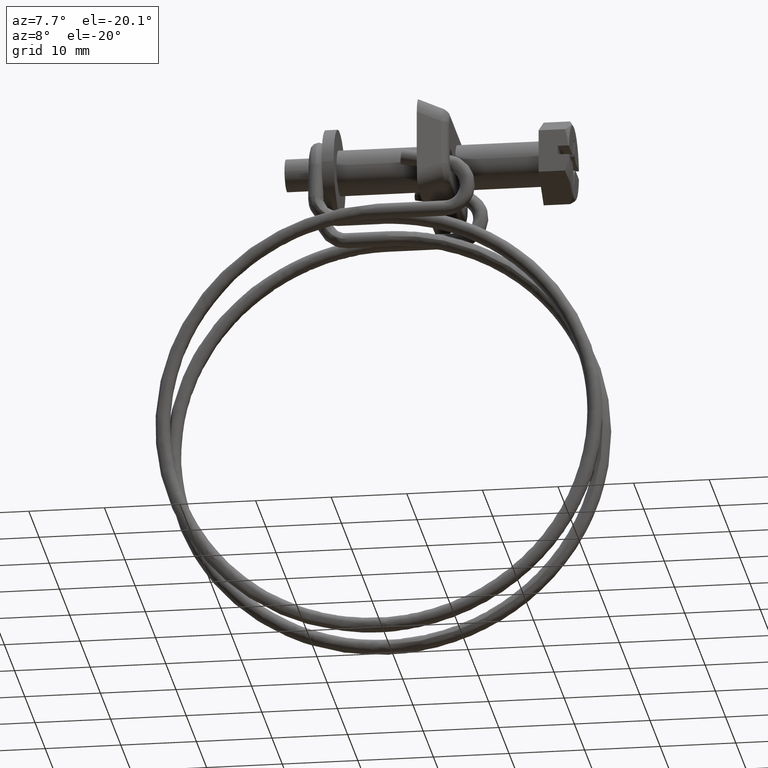
[diagram: clean part render]
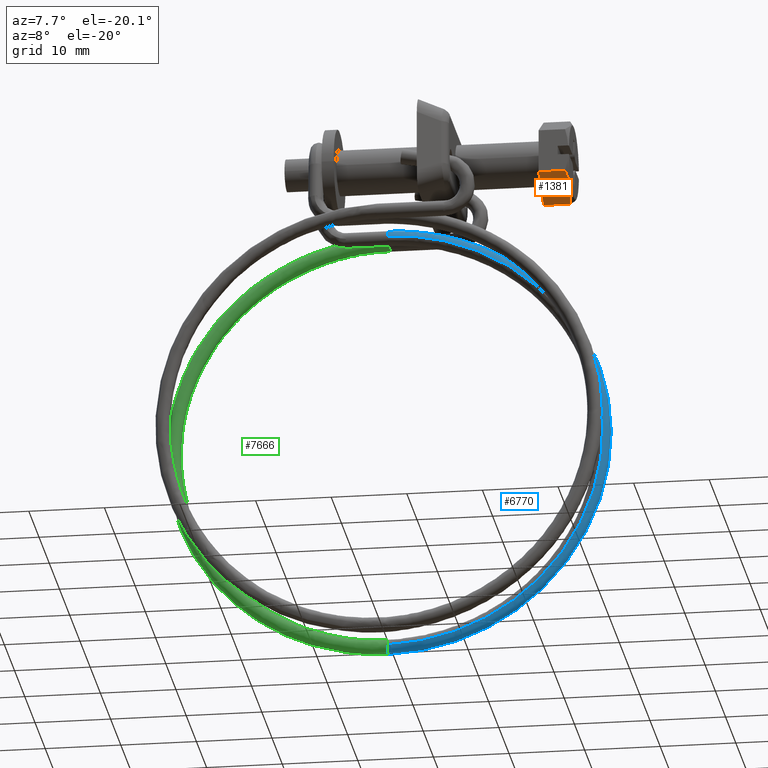
[diagram: same view with three faces highlighted in distinct colors, each labeled with its STEP entity id]
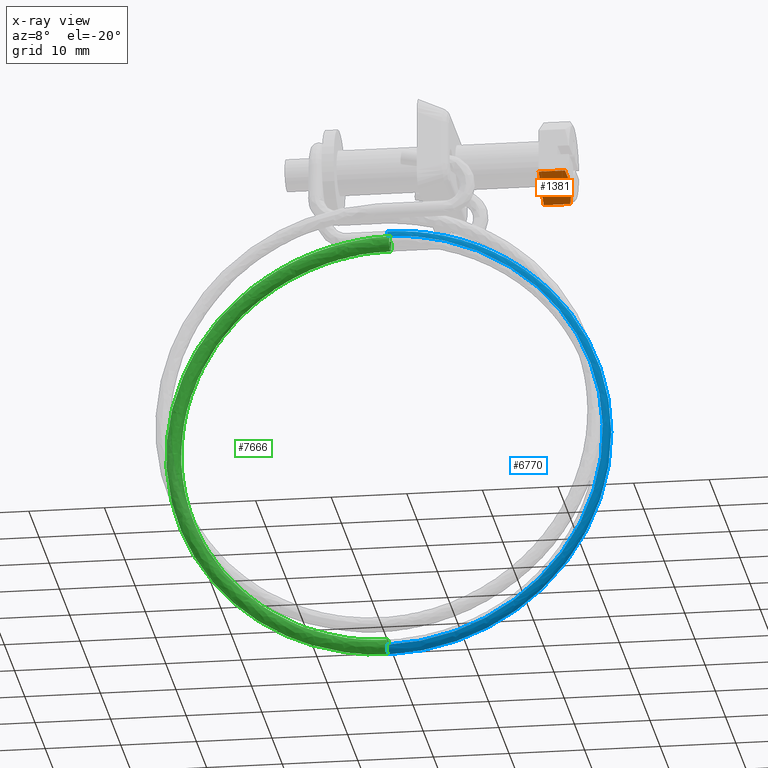
[diagram: x-ray of the same camera — body ghosted, the three highlighted faces saturated]
A machine part, auxiliary view with three faces highlighted in distinct colors.
The next image is the same camera in x-ray (body ghosted, the three faces saturated) — at least one of them is partly hidden behind the body in this view.
Their STEP definitions:

[orange] entity #1381 — the highlighted face is a freeform B-spline surface patch.
#1242=CARTESIAN_POINT('',(3.495681525698620,-5.000000000000110,-2.886751999999890));
#1243=VERTEX_POINT('',#1242);
#1257=CARTESIAN_POINT('',(3.495679343887270,-0.000002153850812,-5.773506797929970));
#1258=VERTEX_POINT('',#1257);
#1259=CARTESIAN_POINT('',(3.495681525698620,-5.000000000000110,-2.886751999999890));
#1260=CARTESIAN_POINT('',(3.631748774838477,-4.591797851232674,-3.122428003818029));
#1261=CARTESIAN_POINT('',(3.743892871781841,-4.180619389377304,-3.359822385593739));
#1262=CARTESIAN_POINT('',(3.860409793536096,-3.557419723301019,-3.719627465809851));
#1263=CARTESIAN_POINT('',(3.890611565091616,-3.348611934754268,-3.840182894828029));
#1264=CARTESIAN_POINT('',(3.931467253749869,-2.928564381532748,-4.082697857220439));
#1265=CARTESIAN_POINT('',(3.942104279098539,-2.717322515331042,-4.204658603913781));
#1266=CARTESIAN_POINT('',(3.942338532055669,-2.398503808791996,-4.388728969360087));
#1267=CARTESIAN_POINT('',(3.939788512961184,-2.291692360367098,-4.450396688167587));
#1268=CARTESIAN_POINT('',(3.929514293409375,-2.079039089782045,-4.573172310887046));
#1269=CARTESIAN_POINT('',(3.921801961243542,-1.973081874141998,-4.634346837364046));
#1270=CARTESIAN_POINT('',(3.891273651466277,-1.656270522594356,-4.817258253980599));
#1271=CARTESIAN_POINT('',(3.861049080379645,-1.446479160930136,-4.938381550126593));
#1272=CARTESIAN_POINT('',(3.744338280449758,-0.820840136469276,-5.299594996853493));
#1273=CARTESIAN_POINT('',(3.631916419630156,-0.408712980371029,-5.537537108396630));
#1274=CARTESIAN_POINT('',(3.495679343887270,-0.000002153850812,-5.773506797929970));
#1275=B_SPLINE_CURVE_WITH_KNOTS('',3,(#1259,#1260,#1261,#1262,#1263,#1264,#1265,#1266,#1267,#1268,#1269,#1270,#1271,#1272,#1273,#1274),.UNSPECIFIED.,.F.,.U.,(4,2,2,2,2,2,2,4),(0.0,0.250000000000000,0.375000000000000,0.500000000000000,0.562500000000000,0.625000000000000,0.750000000000000,1.0),.UNSPECIFIED.);
#1276=EDGE_CURVE('',#1243,#1258,#1275,.T.);
#1342=CARTESIAN_POINT('',(0.0,-5.000000000000110,-2.886751999999890));
#1343=VERTEX_POINT('',#1342);
#1349=CARTESIAN_POINT('',(3.495681525698620,-5.000000000000110,-2.886751999999890));
#1350=CARTESIAN_POINT('',(0.0,-5.000000000000110,-2.886751999999890));
#1351=QUASI_UNIFORM_CURVE('',1,(#1349,#1350),.UNSPECIFIED.,.F.,.U.);
#1352=EDGE_CURVE('',#1243,#1343,#1351,.T.);
#1360=CARTESIAN_POINT('',(-0.196915988637303,-5.249749931969336,-2.742558575006692));
#1361=CARTESIAN_POINT('',(-0.196915988637303,0.249747913744153,-5.917700301226849));
#1362=CARTESIAN_POINT('',(4.139178282128209,-5.249749931969336,-2.742558575006693));
#1363=CARTESIAN_POINT('',(4.139178282128209,0.249747913744153,-5.917700301226849));
#1364=B_SPLINE_SURFACE_WITH_KNOTS('',1,1,((#1360,#1362),(#1361,#1363)),.UNSPECIFIED.,.F.,.F.,.U.,(2,2),(2,2),(0.0,6.350275705557328),(0.0,4.336094270765512),.UNSPECIFIED.);
#1365=ORIENTED_EDGE('',*,*,#1276,.F.);
#1366=ORIENTED_EDGE('',*,*,#1352,.T.);
#1367=CARTESIAN_POINT('',(0.0,0.0,-5.773503999999890));
#1368=VERTEX_POINT('',#1367);
#1369=CARTESIAN_POINT('',(0.0,0.0,-5.773503999999890));
#1370=CARTESIAN_POINT('',(0.0,-5.000000000000110,-2.886751999999890));
#1371=QUASI_UNIFORM_CURVE('',1,(#1369,#1370),.UNSPECIFIED.,.F.,.U.);
#1372=EDGE_CURVE('',#1368,#1343,#1371,.T.);
#1373=ORIENTED_EDGE('',*,*,#1372,.F.);
#1374=CARTESIAN_POINT('',(3.495679343887270,-0.000002153850812,-5.773506797929970));
#1375=CARTESIAN_POINT('',(0.0,0.0,-5.773503999999890));
#1376=QUASI_UNIFORM_CURVE('',1,(#1374,#1375),.UNSPECIFIED.,.F.,.U.);
#1377=EDGE_CURVE('',#1258,#1368,#1376,.T.);
#1378=ORIENTED_EDGE('',*,*,#1377,.F.);
#1379=EDGE_LOOP('',(#1365,#1366,#1373,#1378));
#1380=FACE_OUTER_BOUND('',#1379,.T.);
#1381=ADVANCED_FACE('',(#1380),#1364,.T.);

[blue] entity #6770 — the highlighted face is a freeform B-spline surface patch.
#5497=CARTESIAN_POINT('',(-21.149996624242970,3.300317810718100,-7.824870904546931));
#5498=VERTEX_POINT('',#5497);
#5514=CARTESIAN_POINT('',(-21.149998539359359,4.325132095554661,-6.850316810719779));
#5515=VERTEX_POINT('',#5514);
#5516=CARTESIAN_POINT('',(-21.149996624242970,3.300317810718100,-7.824870904546931));
#5517=CARTESIAN_POINT('',(-21.149996867888081,3.306980532970387,-7.559825429270721));
#5518=CARTESIAN_POINT('',(-21.149997220643929,3.424086079607564,-7.298282559590682));
#5519=CARTESIAN_POINT('',(-21.149997579566140,3.620412036278992,-7.116408823647143));
#5520=CARTESIAN_POINT('',(-21.149997926400829,3.810126273531516,-6.940660095991425));
#5521=CARTESIAN_POINT('',(-21.149998276623290,4.068596198464730,-6.843868004407195));
#5522=CARTESIAN_POINT('',(-21.149998539359359,4.325132095554661,-6.850316810719779));
#5523=B_SPLINE_CURVE_WITH_KNOTS('',3,(#5516,#5517,#5518,#5519,#5520,#5521,#5522),.UNSPECIFIED.,.F.,.U.,(4,3,4),(0.0,0.795387617762786,1.563988763440682),.UNSPECIFIED.);
#5524=EDGE_CURVE('',#5498,#5515,#5523,.T.);
#6634=CARTESIAN_POINT('',(-21.149826052557490,4.325131771549247,-65.849677999282207));
#6635=VERTEX_POINT('',#6634);
#6636=CARTESIAN_POINT('',(-21.149826052557490,4.325131771549247,-65.849677999282193));
#6637=CARTESIAN_POINT('',(8.164913163917657,4.325131771549726,-65.849505142352228));
#6638=CARTESIAN_POINT('',(8.349101890751838,4.325131932533594,-36.535348145360352));
#6639=CARTESIAN_POINT('',(8.535620911489634,4.325132095554176,-6.850318280556022));
#6640=CARTESIAN_POINT('',(-21.149998539359363,4.325132095554661,-6.850316810719779));
#6648=(BOUNDED_CURVE()B_SPLINE_CURVE(2,(#6636,#6637,#6638,#6639,#6640),.UNSPECIFIED.,.F.,.U.)B_SPLINE_CURVE_WITH_KNOTS((3,2,3),(-3.792507771803119,-2.0,-0.192000719173298),.UNSPECIFIED.)CURVE()GEOMETRIC_REPRESENTATION_ITEM()RATIONAL_B_SPLINE_CURVE((0.934809355377087,0.685816451105551,1.0,0.683101161744288,0.939155195149721))REPRESENTATION_ITEM(''));
#6649=EDGE_CURVE('',#6635,#5515,#6648,.T.);
#6675=CARTESIAN_POINT('',(-21.149999994360090,3.300325003227040,-64.875130906118386));
#6676=VERTEX_POINT('',#6675);
#6688=CARTESIAN_POINT('',(-21.149999994360094,3.300325003227041,-64.875130906118386));
#6689=CARTESIAN_POINT('',(7.196462131346602,3.300325003226828,-64.875130900513810));
#6690=CARTESIAN_POINT('',(7.374567033796676,3.300321429568142,-36.529228403763767));
#6691=CARTESIAN_POINT('',(7.554924183753288,3.300317810718314,-7.824874301580952));
#6692=CARTESIAN_POINT('',(-21.149996624242974,3.300317810718100,-7.824870904546931));
#6700=(BOUNDED_CURVE()B_SPLINE_CURVE(2,(#6688,#6689,#6690,#6691,#6692),.UNSPECIFIED.,.F.,.U.)B_SPLINE_CURVE_WITH_KNOTS((3,2,3),(-3.792515020571567,-2.0,-0.192000804182592),.UNSPECIFIED.)CURVE()GEOMETRIC_REPRESENTATION_ITEM()RATIONAL_B_SPLINE_CURVE((0.934811369203963,0.685815180570588,1.0,0.683101176644375,0.939155171071203))REPRESENTATION_ITEM(''));
#6701=EDGE_CURVE('',#6676,#5498,#6700,.T.);
#6706=CARTESIAN_POINT('',(-25.331972609875582,4.339418836760288,-65.551392806188474));
#6707=CARTESIAN_POINT('',(8.136311224761306,4.339418836760289,-70.344433056630720));
#6708=CARTESIAN_POINT('',(8.348742757269040,4.339418836760291,-36.535349506167933));
#6709=CARTESIAN_POINT('',(8.563733789133206,4.339418836760286,-2.318914341905338));
#6710=CARTESIAN_POINT('',(-25.311232097616784,4.339418836760287,-7.145646431579502));
#6711=CARTESIAN_POINT('',(-25.331985194854614,4.335887394765744,-65.551480683115940));
#6712=CARTESIAN_POINT('',(8.136399357240206,4.335887394765744,-70.344535357447725));
#6713=CARTESIAN_POINT('',(8.348831529026729,4.335887394765745,-36.535350063944676));
#6714=CARTESIAN_POINT('',(8.563823207872089,4.335887394765744,-2.318811930782142));
#6715=CARTESIAN_POINT('',(-25.311244620180563,4.335887394765745,-7.145558545736079));
#6716=CARTESIAN_POINT('',(-25.332010650957290,4.328744216397241,-65.551658435028173));
#6717=CARTESIAN_POINT('',(8.136577626065751,4.328744216397241,-70.344742285094938));
#6718=CARTESIAN_POINT('',(8.349011090945130,4.328744216397240,-36.535351192180322));
#6719=CARTESIAN_POINT('',(8.564004078463281,4.328744216397240,-2.318604780014540));
#6720=CARTESIAN_POINT('',(-25.311269950033594,4.328744216397241,-7.145380775789234));
#6721=CARTESIAN_POINT('',(-25.335586092108670,3.325447906162329,-65.576624609530342));
#6722=CARTESIAN_POINT('',(8.161616403717677,3.325447906162327,-70.373806342330994));
#6723=CARTESIAN_POINT('',(8.374231490169940,3.325447906162328,-36.535509658707518));
#6724=CARTESIAN_POINT('',(8.589408287543931,3.325447906162329,-2.289509384368910));
#6725=CARTESIAN_POINT('',(-25.314827658768248,3.325447906162328,-7.120412068228395));
#6726=CARTESIAN_POINT('',(-25.192090693991158,3.300003039268745,-64.574641637925168));
#6727=CARTESIAN_POINT('',(7.156719604856167,3.300003039268747,-69.207360500427200));
#6728=CARTESIAN_POINT('',(7.362045560036283,3.300003039268747,-36.529149823250869));
#6729=CARTESIAN_POINT('',(7.569845402421088,3.300003039268747,-3.457212950107987));
#6730=CARTESIAN_POINT('',(-25.172043926733075,3.300003039268746,-8.122496700649068));
#6731=CARTESIAN_POINT('',(-25.189995226372044,3.299631467111398,-64.560009650422870));
#6732=CARTESIAN_POINT('',(7.142045066646756,3.299631467111401,-69.190326856678340));
#6733=CARTESIAN_POINT('',(7.347264578423440,3.299631467111400,-36.529056950382213));
#6734=CARTESIAN_POINT('',(7.554956694912431,3.299631467111400,-3.474264960435931));
#6735=CARTESIAN_POINT('',(-25.169958851595215,3.299631467111400,-8.137130172707279));
#6736=CARTESIAN_POINT('',(-25.189657252677573,3.299571536996690,-64.557649687029254));
#6737=CARTESIAN_POINT('',(7.139678240336437,3.299571536996693,-69.187579535051569));
#6738=CARTESIAN_POINT('',(7.344880584073886,3.299571536996692,-36.529041971106835));
#6739=CARTESIAN_POINT('',(7.552555325673056,3.299571536996691,-3.477015244370732));
#6740=CARTESIAN_POINT('',(-25.169622554082810,3.299571536996690,-8.139490375541902));
#6748=(BOUNDED_SURFACE()B_SPLINE_SURFACE(2,2,((#6706,#6711,#6716,#6721,#6726,#6731,#6736),(#6707,#6712,#6717,#6722,#6727,#6732,#6737),(#6708,#6713,#6718,#6723,#6728,#6733,#6738),(#6709,#6714,#6719,#6724,#6729,#6734,#6739),(#6710,#6715,#6720,#6725,#6730,#6735,#6740)),.UNSPECIFIED.,.F.,.F.,.U.)B_SPLINE_SURFACE_WITH_KNOTS((3,2,3),(3,1,1,1,1,3),(0.0,53.645813696924058,107.712779183361110),(0.0,0.008363860385234,0.016842950356080,1.673697199848465,1.703199754167871,1.708922001396213),.UNSPECIFIED.)GEOMETRIC_REPRESENTATION_ITEM()RATIONAL_B_SPLINE_SURFACE(((0.996342880543798,0.994878472503660,0.991929481154564,0.700350303658246,0.995610428564680,1.001777853679747,1.002779748075741),(0.658188783692732,0.657221388867527,0.655273271339832,0.462654698021294,0.657704922477218,0.661779152457951,0.662441008598809),(1.005954882205986,1.004476346607162,1.001498905504169,0.707106781186548,1.005215364055394,1.011442288065485,1.012453848020181),(0.655458611389853,0.654495229326066,0.652555192605350,0.460735602658945,0.654976757234503,0.659034087276914,0.659693198033243),(1.001694579773507,1.000222305895680,0.997257474502922,0.704112125269867,1.000958193543672,1.007158746013670,1.008166021927987)))REPRESENTATION_ITEM('')SURFACE());
#6749=ORIENTED_EDGE('',*,*,#5524,.F.);
#6750=ORIENTED_EDGE('',*,*,#6701,.F.);
#6751=CARTESIAN_POINT('',(-21.149999994360090,3.300325003227040,-64.875130906118386));
#6752=CARTESIAN_POINT('',(-21.150064092035429,3.303947776716444,-65.015251713320012));
#6753=CARTESIAN_POINT('',(-21.150105927576391,3.327696244059614,-65.130398237829553));
#6754=CARTESIAN_POINT('',(-21.150142850060661,3.387092982818403,-65.257227225517042));
#6755=CARTESIAN_POINT('',(-21.150175405192108,3.439464015703263,-65.369054326191858));
#6756=CARTESIAN_POINT('',(-21.150180480631139,3.518186392378897,-65.493108767517839));
#6757=CARTESIAN_POINT('',(-21.150179715470191,3.610347380503116,-65.574995541110724));
#6758=CARTESIAN_POINT('',(-21.150178798357050,3.720810483288684,-65.673144088259306));
#6759=CARTESIAN_POINT('',(-21.150139761272470,3.803110832473275,-65.729573380409505));
#6760=CARTESIAN_POINT('',(-21.150072562008450,3.941052820815636,-65.783358105611057));
#6761=CARTESIAN_POINT('',(-21.150013416669630,4.062462270100430,-65.830696656730439));
#6762=CARTESIAN_POINT('',(-21.149915926425560,4.194654196657073,-65.852735568727880));
#6763=CARTESIAN_POINT('',(-21.149826052557490,4.325131771549247,-65.849677999282207));
#6764=B_SPLINE_CURVE_WITH_KNOTS('',3,(#6751,#6752,#6753,#6754,#6755,#6756,#6757,#6758,#6759,#6760,#6761,#6762,#6763),.UNSPECIFIED.,.F.,.U.,(4,3,3,3,4),(0.0,0.420502940374886,0.791266955011875,1.235660448306830,1.626792763673904),.UNSPECIFIED.);
#6765=EDGE_CURVE('',#6676,#6635,#6764,.T.);
#6766=ORIENTED_EDGE('',*,*,#6765,.T.);
#6767=ORIENTED_EDGE('',*,*,#6649,.T.);
#6768=EDGE_LOOP('',(#6749,#6750,#6766,#6767));
#6769=FACE_OUTER_BOUND('',#6768,.T.);
#6770=ADVANCED_FACE('',(#6769),#6748,.T.);

[green] entity #7666 — the highlighted face is a freeform B-spline surface patch.
#5708=CARTESIAN_POINT('',(-21.149999970795239,6.025335786227454,-6.891878273989285));
#5709=VERTEX_POINT('',#5708);
#5710=CARTESIAN_POINT('',(-21.149999999998681,6.380440630137719,-6.852484891827141));
#5711=VERTEX_POINT('',#5710);
#5712=CARTESIAN_POINT('',(-21.149999970795239,6.025335786227454,-6.891878273989285));
#5713=CARTESIAN_POINT('',(-21.149999980431129,6.140141370209251,-6.857826982288133));
#5714=CARTESIAN_POINT('',(-21.149999990368531,6.260917911461847,-6.843895430732024));
#5715=CARTESIAN_POINT('',(-21.149999999998681,6.380440630137719,-6.852484891827141));
#5716=B_SPLINE_CURVE_WITH_KNOTS('',3,(#5712,#5713,#5714,#5715),.UNSPECIFIED.,.F.,.U.,(4,4),(0.942811784102289,1.0),.UNSPECIFIED.);
#5717=EDGE_CURVE('',#5709,#5711,#5716,.T.);
#5770=CARTESIAN_POINT('',(-21.149999999619400,5.310085101607250,-7.840591745514334));
#5771=VERTEX_POINT('',#5770);
#5777=CARTESIAN_POINT('',(-21.149999999998670,6.239563180762208,-8.847517108173028));
#5778=VERTEX_POINT('',#5777);
#5779=CARTESIAN_POINT('',(-21.149999999998670,6.239563180762208,-8.847517108173028));
#5780=CARTESIAN_POINT('',(-21.149999999945891,5.978408658107547,-8.829076254945447));
#5781=CARTESIAN_POINT('',(-21.149999999873000,5.726451583159330,-8.703243542925533));
#5782=CARTESIAN_POINT('',(-21.149999999733780,5.396548991325290,-8.323225748604225));
#5783=CARTESIAN_POINT('',(-21.149999999668150,5.308387266164189,-8.081859620323648));
#5784=CARTESIAN_POINT('',(-21.149999999619400,5.310085101607250,-7.840591745514334));
#5785=B_SPLINE_CURVE_WITH_KNOTS('',3,(#5779,#5780,#5781,#5782,#5783,#5784),.UNSPECIFIED.,.F.,.U.,(4,2,4),(0.499999999999999,0.624999999999999,0.740274297664282),.UNSPECIFIED.);
#5786=EDGE_CURVE('',#5778,#5771,#5785,.T.);
#5788=CARTESIAN_POINT('',(-21.149999999998681,7.085357385904905,-7.218511019585992));
#5789=VERTEX_POINT('',#5788);
#5790=CARTESIAN_POINT('',(-21.149999999998681,7.085357385904905,-7.218511019585992));
#5791=CARTESIAN_POINT('',(-21.149999999998670,7.243742907248322,-7.413519739514854));
#5792=CARTESIAN_POINT('',(-21.149999999998670,7.325221178872543,-7.669736825387703));
#5793=CARTESIAN_POINT('',(-21.149999999998670,7.289077198622231,-8.181588831127346));
#5794=CARTESIAN_POINT('',(-21.149999999998670,7.163244539398654,-8.433538425590239));
#5795=CARTESIAN_POINT('',(-21.149999999998670,6.767844680595302,-8.776779783043452));
#5796=CARTESIAN_POINT('',(-21.149999999998670,6.500712287201663,-8.865957923173633));
#5797=CARTESIAN_POINT('',(-21.149999999998670,6.239563180762213,-8.847517108173028));
#5798=B_SPLINE_CURVE_WITH_KNOTS('',3,(#5790,#5791,#5792,#5793,#5794,#5795,#5796,#5797),.UNSPECIFIED.,.F.,.U.,(4,2,2,4),(0.130000116256226,0.250000000000000,0.374999999999999,0.499999999999999),.UNSPECIFIED.);
#5799=EDGE_CURVE('',#5789,#5778,#5798,.T.);
#5831=CARTESIAN_POINT('',(-21.149999999619400,5.310085101607250,-7.840591745514334));
#5832=CARTESIAN_POINT('',(-21.149999999222960,5.310227407568727,-7.820229592972275));
#5833=CARTESIAN_POINT('',(-21.149999998817179,5.311009317434294,-7.799867989892026));
#5834=CARTESIAN_POINT('',(-21.149999993074019,5.330865190726826,-7.518307816466671));
#5835=CARTESIAN_POINT('',(-21.149999986354221,5.456674752239215,-7.266250344004663));
#5836=CARTESIAN_POINT('',(-21.149999976769259,5.761592815093470,-7.001372555553209));
#5837=CARTESIAN_POINT('',(-21.149999973569631,5.889266873250429,-6.932480796404217));
#5838=CARTESIAN_POINT('',(-21.149999970795239,6.025335786227454,-6.891878273989285));
#5839=B_SPLINE_CURVE_WITH_KNOTS('',3,(#5831,#5832,#5833,#5834,#5835,#5836,#5837,#5838),.UNSPECIFIED.,.F.,.U.,(4,2,2,4),(0.740274297664282,0.749999999999999,0.874999999999999,0.942811784102289),.UNSPECIFIED.);
#5840=EDGE_CURVE('',#5771,#5709,#5839,.T.);
#6634=CARTESIAN_POINT('',(-21.149826052557490,4.325131771549247,-65.849677999282207));
#6635=VERTEX_POINT('',#6634);
#6651=CARTESIAN_POINT('',(-21.150000000001501,5.028950232442386,-65.534537478834281));
#6652=VERTEX_POINT('',#6651);
#6662=CARTESIAN_POINT('',(-21.150000000001501,4.300002000002290,-63.850001000000198));
#6663=VERTEX_POINT('',#6662);
#6664=CARTESIAN_POINT('',(-21.150000000001501,5.028950232442386,-65.534537478834281));
#6665=CARTESIAN_POINT('',(-21.150000000001501,5.200678506819119,-65.351169613604796));
#6666=CARTESIAN_POINT('',(-21.150000000001501,5.300002000002290,-65.101328168800634));
#6667=CARTESIAN_POINT('',(-21.150000000001501,5.300002000002290,-64.588201612201004));
#6668=CARTESIAN_POINT('',(-21.150000000001501,5.192228903612100,-64.328014341236909));
#6669=CARTESIAN_POINT('',(-21.150000000001501,4.821988658765570,-63.957774096390388));
#6670=CARTESIAN_POINT('',(-21.150000000001501,4.561801387801440,-63.850001000000198));
#6671=CARTESIAN_POINT('',(-21.150000000001501,4.300002000002290,-63.850001000000198));
#6672=B_SPLINE_CURVE_WITH_KNOTS('',3,(#6664,#6665,#6666,#6667,#6668,#6669,#6670,#6671),.UNSPECIFIED.,.F.,.U.,(4,2,2,4),(0.130000116256332,0.250000000000000,0.375000000000000,0.500000000000000),.UNSPECIFIED.);
#6673=EDGE_CURVE('',#6652,#6663,#6672,.T.);
#6675=CARTESIAN_POINT('',(-21.149999994360090,3.300325003227040,-64.875130906118386));
#6676=VERTEX_POINT('',#6675);
#6677=CARTESIAN_POINT('',(-21.150000000001501,4.300002000002290,-63.850001000000198));
#6678=CARTESIAN_POINT('',(-21.149999999281370,4.038201694074227,-63.850001024100912));
#6679=CARTESIAN_POINT('',(-21.149999998261670,3.778013123049261,-63.957774154617461));
#6680=CARTESIAN_POINT('',(-21.149999996198900,3.407770248273171,-64.328014468499148));
#6681=CARTESIAN_POINT('',(-21.149999995168528,3.299995838208926,-64.588201773946949));
#6682=CARTESIAN_POINT('',(-21.149999994406429,3.299994866563223,-64.858380213808232));
#6683=CARTESIAN_POINT('',(-21.149999994383101,3.300105234577536,-64.866757589767928));
#6684=CARTESIAN_POINT('',(-21.149999994360090,3.300325003227040,-64.875130906118386));
#6685=B_SPLINE_CURVE_WITH_KNOTS('',3,(#6677,#6678,#6679,#6680,#6681,#6682,#6683,#6684),.UNSPECIFIED.,.F.,.U.,(4,2,2,4),(0.500000000000000,0.625000000000000,0.750000000000000,0.754000690484359),.UNSPECIFIED.);
#6686=EDGE_CURVE('',#6663,#6676,#6685,.T.);
#6751=CARTESIAN_POINT('',(-21.149999994360090,3.300325003227040,-64.875130906118386));
#6752=CARTESIAN_POINT('',(-21.150064092035429,3.303947776716444,-65.015251713320012));
#6753=CARTESIAN_POINT('',(-21.150105927576391,3.327696244059614,-65.130398237829553));
#6754=CARTESIAN_POINT('',(-21.150142850060661,3.387092982818403,-65.257227225517042));
#6755=CARTESIAN_POINT('',(-21.150175405192108,3.439464015703263,-65.369054326191858));
#6756=CARTESIAN_POINT('',(-21.150180480631139,3.518186392378897,-65.493108767517839));
#6757=CARTESIAN_POINT('',(-21.150179715470191,3.610347380503116,-65.574995541110724));
#6758=CARTESIAN_POINT('',(-21.150178798357050,3.720810483288684,-65.673144088259306));
#6759=CARTESIAN_POINT('',(-21.150139761272470,3.803110832473275,-65.729573380409505));
#6760=CARTESIAN_POINT('',(-21.150072562008450,3.941052820815636,-65.783358105611057));
#6761=CARTESIAN_POINT('',(-21.150013416669630,4.062462270100430,-65.830696656730439));
#6762=CARTESIAN_POINT('',(-21.149915926425560,4.194654196657073,-65.852735568727880));
#6763=CARTESIAN_POINT('',(-21.149826052557490,4.325131771549247,-65.849677999282207));
#6764=B_SPLINE_CURVE_WITH_KNOTS('',3,(#6751,#6752,#6753,#6754,#6755,#6756,#6757,#6758,#6759,#6760,#6761,#6762,#6763),.UNSPECIFIED.,.F.,.U.,(4,3,3,3,4),(0.0,0.420502940374886,0.791266955011875,1.235660448306830,1.626792763673904),.UNSPECIFIED.);
#6765=EDGE_CURVE('',#6676,#6635,#6764,.T.);
#7387=CARTESIAN_POINT('',(-20.691513466141309,7.068040252349214,-7.197201999590277));
#7388=CARTESIAN_POINT('',(-20.694520080045351,7.237676437304249,-7.394533147696509));
#7389=CARTESIAN_POINT('',(-20.702823531090100,7.414490450763454,-7.929222802199892));
#7390=CARTESIAN_POINT('',(-20.714942685306720,7.036755926239905,-8.687199246056348));
#7391=CARTESIAN_POINT('',(-20.719599866132071,6.231933057542674,-8.955214542527166));
#7392=CARTESIAN_POINT('',(-20.714074144727480,5.472797546828560,-8.576772806667828));
#7393=CARTESIAN_POINT('',(-20.701576229180219,5.204719257731076,-7.771917543168471));
#7394=CARTESIAN_POINT('',(-20.689169676111192,5.591945470012596,-6.995984944794512));
#7395=CARTESIAN_POINT('',(-20.686130195621811,6.155727684862486,-6.822424724179506));
#7396=CARTESIAN_POINT('',(-20.686507093232670,6.432883928079930,-6.856184936784531));
#7397=CARTESIAN_POINT('',(-20.844342310760439,7.068044681358916,-7.197203356000011));
#7398=CARTESIAN_POINT('',(-20.846346720029800,7.237680852275612,-7.394534490815819));
#7399=CARTESIAN_POINT('',(-20.851882354059640,7.414494826519770,-7.929224108749670));
#7400=CARTESIAN_POINT('',(-20.859961790204050,7.036760242987019,-8.687200499745691));
#7401=CARTESIAN_POINT('',(-20.863066577420948,6.231937351091840,-8.955215776056969));
#7402=CARTESIAN_POINT('',(-20.859382763151221,5.472801867867655,-8.576774064128980));
#7403=CARTESIAN_POINT('',(-20.851050819453050,5.204723639468337,-7.771918855183801));
#7404=CARTESIAN_POINT('',(-20.842779784073699,5.591949910120349,-6.995986311519564));
#7405=CARTESIAN_POINT('',(-20.840753463747429,6.155732138877342,-6.822426104423640));
#7406=CARTESIAN_POINT('',(-20.841004728821350,6.432888380377577,-6.856186315349298));
#7407=CARTESIAN_POINT('',(-20.997171155379569,7.068049110368619,-7.197204712409744));
#7408=CARTESIAN_POINT('',(-20.998173360014260,7.237685267246974,-7.394535833935125));
#7409=CARTESIAN_POINT('',(-21.000941177029169,7.414499202276090,-7.929225415299452));
#7410=CARTESIAN_POINT('',(-21.004980895101369,7.036764559734131,-8.687201753435026));
#7411=CARTESIAN_POINT('',(-21.006533288709829,6.231941644641008,-8.955217009586775));
#7412=CARTESIAN_POINT('',(-21.004691381574961,5.472806188906747,-8.576775321590134));
#7413=CARTESIAN_POINT('',(-21.000525409725871,5.204728021205598,-7.771920167199132));
#7414=CARTESIAN_POINT('',(-20.996389892036198,5.591954350228103,-6.995987678244616));
#7415=CARTESIAN_POINT('',(-20.995376731873069,6.155736592892191,-6.822427484667777));
#7416=CARTESIAN_POINT('',(-20.995502364410029,6.432892832675225,-6.856187693914066));
#7417=CARTESIAN_POINT('',(-24.970714031801219,7.068164264415588,-7.197239978999948));
#7418=CARTESIAN_POINT('',(-24.945658962386752,7.237800056297759,-7.394570754974854));
#7419=CARTESIAN_POINT('',(-24.876463665303159,7.414612971737562,-7.929259385533172));
#7420=CARTESIAN_POINT('',(-24.775470900740569,7.036876794958961,-8.687234349299716));
#7421=CARTESIAN_POINT('',(-24.736661132483341,6.232053276720357,-8.955249081304498));
#7422=CARTESIAN_POINT('',(-24.782708725481800,5.472918535722892,-8.576808015521905));
#7423=CARTESIAN_POINT('',(-24.886857828614598,5.204841946171275,-7.771954279536915));
#7424=CARTESIAN_POINT('',(-24.990245579173688,5.592069792823902,-6.996023213032616));
#7425=CARTESIAN_POINT('',(-25.015574536291471,6.155852397071932,-6.822463370951319));
#7426=CARTESIAN_POINT('',(-25.012433728690709,6.433008592207690,-6.856223536534125));
#7427=CARTESIAN_POINT('',(-28.788473774073111,7.041265658770264,-7.956864079267101));
#7428=CARTESIAN_POINT('',(-28.738383654188461,7.211077488371997,-8.149213025548706));
#7429=CARTESIAN_POINT('',(-28.600048346912800,7.388376583299677,-8.670143192079616));
#7430=CARTESIAN_POINT('',(-28.398143510829438,7.011350045494293,-9.408037221737443));
#7431=CARTESIAN_POINT('',(-28.320554983295342,6.206799242246138,-9.668335195073782));
#7432=CARTESIAN_POINT('',(-28.412613377303710,5.447340927146587,-9.299050023955415));
#7433=CARTESIAN_POINT('',(-28.620828368650191,5.178532524083761,-8.514904812828773));
#7434=CARTESIAN_POINT('',(-28.827521263143630,5.565033954034527,-7.759530873527261));
#7435=CARTESIAN_POINT('',(-28.878158939614369,6.128638603340582,-7.591007317562551));
#7436=CARTESIAN_POINT('',(-28.871879833924609,6.405816864827829,-7.624142980380938));
#7437=CARTESIAN_POINT('',(-35.846330388315593,6.938165447965880,-10.880601451596119));
#7438=CARTESIAN_POINT('',(-35.749969642537017,7.108653192583974,-11.053782658204520));
#7439=CARTESIAN_POINT('',(-35.483847433064398,7.287818981232690,-11.521776733557729));
#7440=CARTESIAN_POINT('',(-35.095433497802453,6.913516943003456,-12.182408833156209));
#7441=CARTESIAN_POINT('',(-34.946172757427128,6.110013117711135,-12.413016386548060));
#7442=CARTESIAN_POINT('',(-35.123269868087419,5.349312568599325,-12.078958747984650));
#7443=CARTESIAN_POINT('',(-35.523822949089563,5.077694516839995,-11.374490142915890));
#7444=CARTESIAN_POINT('',(-35.921447900049273,5.461406837247408,-10.698210356328300));
#7445=CARTESIAN_POINT('',(-36.018862006460147,6.024328182812331,-10.549064070837730));
#7446=CARTESIAN_POINT('',(-36.006782592210101,6.301591174415861,-10.579796939173560));
#7447=CARTESIAN_POINT('',(-39.083030212212279,6.861893937494379,-13.043524920867760));
#7448=CARTESIAN_POINT('',(-38.965456573586323,7.032881621087443,-13.202528753349551));
#7449=CARTESIAN_POINT('',(-38.640750115255649,7.213428105397678,-13.631368771751990));
#7450=CARTESIAN_POINT('',(-38.166830582048007,6.841141236971444,-14.234854264298940));
#7451=CARTESIAN_POINT('',(-37.984711523073557,6.038411806483939,-14.443501367475720));
#7452=CARTESIAN_POINT('',(-38.200794861938093,5.276792441861477,-14.135499691593710));
#7453=CARTESIAN_POINT('',(-38.689525857279421,5.003096239971494,-13.489963703123140));
#7454=CARTESIAN_POINT('',(-39.174684122802113,5.384745601983936,-12.872185722918690));
#7455=CARTESIAN_POINT('',(-39.293543009303470,5.947161543524501,-12.737371790498440));
#7456=CARTESIAN_POINT('',(-39.278804428011071,6.224487205567861,-12.766327437490091));
#7457=CARTESIAN_POINT('',(-44.484335217551468,6.671412261908819,-18.445244174225930));
#7458=CARTESIAN_POINT('',(-44.331373938028598,6.843647921153277,-18.568857651782171));
#7459=CARTESIAN_POINT('',(-43.908936426314050,7.027640975282741,-18.899959121392211));
#7460=CARTESIAN_POINT('',(-43.292375273290020,6.660384486493507,-19.360792054381371));
#7461=CARTESIAN_POINT('',(-43.055441513095090,5.859588143681209,-19.514620252436579));
#7462=CARTESIAN_POINT('',(-43.336562216658443,5.095675180342089,-19.271660929152269));
#7463=CARTESIAN_POINT('',(-43.972392826867562,4.816791383780597,-18.773235837260579));
#7464=CARTESIAN_POINT('',(-44.603575377188903,5.193291073541959,-18.301493341016162));
#7465=CARTESIAN_POINT('',(-44.758208742046278,5.754445397286033,-18.202456630675730));
#7466=CARTESIAN_POINT('',(-44.739034101544142,6.031927500775863,-18.226975878229400));
#7467=CARTESIAN_POINT('',(-46.646823577080497,6.557277055612865,-21.681914260297241));
#7468=CARTESIAN_POINT('',(-46.479700938992572,6.730260243651103,-21.784329159740832));
#7469=CARTESIAN_POINT('',(-46.018153600977932,6.916317769286407,-22.056885913919750));
#7470=CARTESIAN_POINT('',(-45.344510396894613,6.552074443159879,-22.432270949208270));
#7471=CARTESIAN_POINT('',(-45.085640994353703,5.752436006504084,-22.553263001834850));
#7472=CARTESIAN_POINT('',(-45.392788226201482,4.987149193389097,-22.349263598402619));
#7473=CARTESIAN_POINT('',(-46.087484879463162,4.705158063447125,-21.938956917242241));
#7474=CARTESIAN_POINT('',(-46.777103149173413,5.078573135116852,-21.554688666970701));
#7475=CARTESIAN_POINT('',(-46.946052676502973,5.638971758504765,-21.477082265501540));
#7476=CARTESIAN_POINT('',(-46.925102822290206,5.916547569344844,-21.498944140447339));
#7477=CARTESIAN_POINT('',(-49.569779908232150,6.308420751829607,-28.739033446423409));
#7478=CARTESIAN_POINT('',(-49.383519305384688,6.483033318699399,-28.795242079708629));
#7479=CARTESIAN_POINT('',(-48.869118106379823,6.673590746150394,-28.940189675764842));
#7480=CARTESIAN_POINT('',(-48.118332990027227,6.315915171629841,-29.129325035156299));
#7481=CARTESIAN_POINT('',(-47.829819288107807,5.518800608043193,-29.178744566824669));
#7482=CARTESIAN_POINT('',(-48.172139330657238,4.750519232349159,-29.059665596135481));
#7483=CARTESIAN_POINT('',(-48.946388821280550,4.461755088086768,-28.841429473595468));
#7484=CARTESIAN_POINT('',(-49.714978379938252,4.828446657653223,-28.647827704476050));
#7485=CARTESIAN_POINT('',(-49.903275077300073,5.387198090767977,-28.616932669648541));
#7486=CARTESIAN_POINT('',(-49.879926161097799,5.664978154301671,-28.633002303943869));
#7487=CARTESIAN_POINT('',(-50.329104126691391,6.173797362004336,-32.556711732430301));
#7488=CARTESIAN_POINT('',(-50.137873784036721,6.349291148310956,-32.587930560331102));
#7489=CARTESIAN_POINT('',(-49.609747513380952,6.542282264518444,-32.663863100849987));
#7490=CARTESIAN_POINT('',(-48.838930212925938,6.188158737121519,-32.752268764026098));
#7491=CARTESIAN_POINT('',(-48.542718490060281,5.392409163645243,-32.762979620058182));
#7492=CARTESIAN_POINT('',(-48.894172195383653,4.622508234116244,-32.689828296490440));
#7493=CARTESIAN_POINT('',(-49.689079938299720,4.330081030189084,-32.575469987048777));
#7494=CARTESIAN_POINT('',(-50.478176732879703,4.693136317856753,-32.484986661622472));
#7495=CARTESIAN_POINT('',(-50.671497496419491,5.250996898548102,-32.479354606455033));
#7496=CARTESIAN_POINT('',(-50.647525592649458,5.528887428375803,-32.492291614397921));
#7497=CARTESIAN_POINT('',(-50.329104126639592,5.904444909895994,-40.195064985911422));
#7498=CARTESIAN_POINT('',(-50.137873783984929,6.081701803045217,-40.176285260699537));
#7499=CARTESIAN_POINT('',(-49.609747513329161,6.279562141512403,-40.114135376498368));
#7500=CARTESIAN_POINT('',(-48.838930212874132,5.932545400820416,-40.001005293776153));
#7501=CARTESIAN_POINT('',(-48.542718490008490,5.139526842252225,-39.934269457228488));
#7502=CARTESIAN_POINT('',(-48.894172195331862,4.366385577394205,-39.953008241211947));
#7503=CARTESIAN_POINT('',(-49.689079938247922,4.066629477546383,-40.046484297676344));
#7504=CARTESIAN_POINT('',(-50.478176732827912,4.422409445096778,-40.162316023762997));
#7505=CARTESIAN_POINT('',(-50.671497496367692,4.978487645669363,-40.207229077370023));
#7506=CARTESIAN_POINT('',(-50.647525592597653,5.256599191824897,-40.213898458078361));
#7507=CARTESIAN_POINT('',(-49.569779908233258,5.769821520065857,-44.012743271902337));
#7508=CARTESIAN_POINT('',(-49.383519305385789,5.947959632651909,-43.968973741308972));
#7509=CARTESIAN_POINT('',(-48.869118106384619,6.148253659875892,-43.837808801533960));
#7510=CARTESIAN_POINT('',(-48.118332990009883,5.804788966305754,-43.623949022642392));
#7511=CARTESIAN_POINT('',(-47.829819288140293,5.013135397850151,-43.518504510423298));
#7512=CARTESIAN_POINT('',(-48.172139330638821,4.238374579156150,-43.583170941554762));
#7513=CARTESIAN_POINT('',(-48.946388821285566,3.934955419641003,-43.780524811104513));
#7514=CARTESIAN_POINT('',(-49.714978379939261,4.287099105297114,-43.999474980905802));
#7515=CARTESIAN_POINT('',(-49.903275077301167,4.842286453444810,-44.069651014149947));
#7516=CARTESIAN_POINT('',(-49.879926161098922,5.120508465894168,-44.073187768510522));
#7517=CARTESIAN_POINT('',(-46.646823577081562,5.520965216292311,-51.069862458060641));
#7518=CARTESIAN_POINT('',(-46.479700938993567,5.700732707709911,-50.979886661303070));
#7519=CARTESIAN_POINT('',(-46.018153600975367,5.905526636749001,-50.721112563478478));
#7520=CARTESIAN_POINT('',(-45.344510396914238,5.568629694788372,-50.321003108597637));
#7521=CARTESIAN_POINT('',(-45.085640994323377,4.779499999397510,-50.143986075490723));
#7522=CARTESIAN_POINT('',(-45.392788226222088,4.001744618126478,-50.293572939312021));
#7523=CARTESIAN_POINT('',(-46.087484879460362,3.691552444296020,-50.682997367508072));
#7524=CARTESIAN_POINT('',(-46.777103149174593,4.036972627839888,-51.092614018418573));
#7525=CARTESIAN_POINT('',(-46.946052676504067,4.590512785717371,-51.209501418350293));
#7526=CARTESIAN_POINT('',(-46.925102822291286,4.868939050860710,-51.207245932051059));
#7527=CARTESIAN_POINT('',(-44.484335217594889,5.406830009995751,-54.306532544088093));
#7528=CARTESIAN_POINT('',(-44.331373938067088,5.587345030205988,-54.195358169226793));
#7529=CARTESIAN_POINT('',(-43.908936426350763,5.794203430754869,-53.878039355909529));
#7530=CARTESIAN_POINT('',(-43.292375273319891,5.460319651450561,-53.392482003406762));
#7531=CARTESIAN_POINT('',(-43.055441513162393,4.672347862219742,-53.182628824804297));
#7532=CARTESIAN_POINT('',(-43.336562216676732,3.893218631168239,-53.371175608531679));
#7533=CARTESIAN_POINT('',(-43.972392826909747,3.579919123960455,-53.848718447426478));
#7534=CARTESIAN_POINT('',(-44.603575377221169,3.922254689410231,-54.345809344335102));
#7535=CARTESIAN_POINT('',(-44.758208742095803,4.475039146936424,-54.484127053115138));
#7536=CARTESIAN_POINT('',(-44.739034101601753,4.753559119428102,-54.479214194197148));
#7537=CARTESIAN_POINT('',(-39.083030212172993,5.216348334401655,-59.708251797503017));
#7538=CARTESIAN_POINT('',(-38.965456573551947,5.398111330265581,-59.561687067704057));
#7539=CARTESIAN_POINT('',(-38.640750115222950,5.608416300626371,-59.146629705644422));
#7540=CARTESIAN_POINT('',(-38.166830582022271,5.279562900968308,-58.518419793518717));
#7541=CARTESIAN_POINT('',(-37.984711523010297,4.493524199410006,-58.253747709858189));
#7542=CARTESIAN_POINT('',(-38.200794861923903,3.712101369649048,-58.507336846128403));
#7543=CARTESIAN_POINT('',(-38.689525857241343,3.393614267758323,-59.131990581641453));
#7544=CARTESIAN_POINT('',(-39.174684122773883,3.730800160970915,-59.775116962502253));
#7545=CARTESIAN_POINT('',(-39.293543009258009,4.282323000687930,-59.949211893362147));
#7546=CARTESIAN_POINT('',(-39.278804427957539,4.560999414629537,-59.939862635037308));
#7547=CARTESIAN_POINT('',(-35.846330388291960,5.140076823930316,-61.871175266792413));
#7548=CARTESIAN_POINT('',(-35.749969642507487,5.322339758767152,-61.710433162866707));
#7549=CARTESIAN_POINT('',(-35.483847433049213,5.534025424799708,-61.256221743853907));
#7550=CARTESIAN_POINT('',(-35.095433497756893,5.207187194931719,-60.570865224649950));
#7551=CARTESIAN_POINT('',(-34.946172757422723,4.421922888180830,-60.284232690789651));
#7552=CARTESIAN_POINT('',(-35.123269868049540,3.639581242914138,-60.563877789748027));
#7553=CARTESIAN_POINT('',(-35.523822949072823,3.319015990892992,-61.247464141847964));
#7554=CARTESIAN_POINT('',(-35.921447900013099,3.654138925707176,-61.949092329077473));
#7555=CARTESIAN_POINT('',(-36.018862006435363,4.205156361402255,-62.137519613044141));
#7556=CARTESIAN_POINT('',(-36.006782592194583,4.483895445780256,-62.126393133356132));
#7557=CARTESIAN_POINT('',(-28.788473774101931,5.036976613134073,-64.794912639031111));
#7558=CARTESIAN_POINT('',(-28.738383654223160,5.219915462989095,-64.615002795444582));
#7559=CARTESIAN_POINT('',(-28.600048346933232,5.433467822729493,-64.107855285208913));
#7560=CARTESIAN_POINT('',(-28.398143510880178,5.109354092454264,-63.345236836063989));
#7561=CARTESIAN_POINT('',(-28.320554983304980,4.325136763656723,-63.028913882165213));
#7562=CARTESIAN_POINT('',(-28.412613377346741,3.541552884360727,-63.343786513719927));
#7563=CARTESIAN_POINT('',(-28.620828368672150,3.218177983654060,-64.107049471860805));
#7564=CARTESIAN_POINT('',(-28.827521263185009,3.550511808917847,-64.887771811841148));
#7565=CARTESIAN_POINT('',(-28.878158939644312,4.100845940879651,-65.095576366208931));
#7566=CARTESIAN_POINT('',(-28.871879833945311,4.379669755377349,-65.082047092045201));
#7567=CARTESIAN_POINT('',(-24.970714062861830,5.010189858828525,-65.554570678288314));
#7568=CARTESIAN_POINT('',(-24.945658993150172,5.193304387562749,-65.369678680151154));
#7569=CARTESIAN_POINT('',(-24.876463695261261,5.407341924865081,-64.848771800352750));
#7570=CARTESIAN_POINT('',(-24.775470929473311,5.083936327320143,-64.066071082424457));
#7571=CARTESIAN_POINT('',(-24.736661160764012,4.299991122125504,-63.742030834191858));
#7572=CARTESIAN_POINT('',(-24.782708754246350,3.516084370785983,-64.066059926895576));
#7573=CARTESIAN_POINT('',(-24.886857858611400,3.191979206463278,-64.850032760647906));
#7574=CARTESIAN_POINT('',(-24.990245610401480,3.523588106030371,-65.651313608962170));
#7575=CARTESIAN_POINT('',(-25.015574567853552,4.073744638164697,-65.864154809765964));
#7576=CARTESIAN_POINT('',(-25.012433760232319,4.352590474911033,-65.850001002141397));
#7577=CARTESIAN_POINT('',(-20.997113801542181,5.010188625794934,-65.554570648374039));
#7578=CARTESIAN_POINT('',(-20.998116382289471,5.193303162726144,-65.369678642531525));
#7579=CARTESIAN_POINT('',(-21.000885238024669,5.407340722449415,-64.848771753707069));
#7580=CARTESIAN_POINT('',(-21.004926472144579,5.083935157152418,-64.066071049410354));
#7581=CARTESIAN_POINT('',(-21.006479448343111,4.299989963856842,-63.742030834172070));
#7582=CARTESIAN_POINT('',(-21.004636849970169,3.516083197121807,-64.066059959924644));
#7583=CARTESIAN_POINT('',(-21.000469314693429,3.191977999051350,-64.850032807308509));
#7584=CARTESIAN_POINT('',(-20.996332245004780,3.523586865606254,-65.651313641677334));
#7585=CARTESIAN_POINT('',(-20.995318704616249,4.073743390001226,-65.864154819282021));
#7586=CARTESIAN_POINT('',(-20.995444384300558,4.352589227965500,-65.850000999914528));
#7587=CARTESIAN_POINT('',(-20.844227603082860,5.010188578353368,-65.554570647223073));
#7588=CARTESIAN_POINT('',(-20.846232764577451,5.193303115599961,-65.369678641084093));
#7589=CARTESIAN_POINT('',(-20.851770476047850,5.407340676185888,-64.848771751912309));
#7590=CARTESIAN_POINT('',(-20.859852944287649,5.083935112129646,-64.066071048140131));
#7591=CARTESIAN_POINT('',(-20.862958896684731,4.299989919291894,-63.742030834171310));
#7592=CARTESIAN_POINT('',(-20.859273699938839,3.516083151964507,-64.066059961195464));
#7593=CARTESIAN_POINT('',(-20.850938629385361,3.191977952595591,-64.850032809103809));
#7594=CARTESIAN_POINT('',(-20.842664490008069,3.523586817880336,-65.651313642936088));
#7595=CARTESIAN_POINT('',(-20.840637409230968,4.073743341977531,-65.864154819648149));
#7596=CARTESIAN_POINT('',(-20.840888768599619,4.352589179988666,-65.850000999828850));
#7597=CARTESIAN_POINT('',(-20.691341404623540,5.010188530911802,-65.554570646072108));
#7598=CARTESIAN_POINT('',(-20.694349146865431,5.193303068473779,-65.369678639636675));
#7599=CARTESIAN_POINT('',(-20.702655714071021,5.407340629922363,-64.848771750117592));
#7600=CARTESIAN_POINT('',(-20.714779416430730,5.083935067106874,-64.066071046869908));
#7601=CARTESIAN_POINT('',(-20.719438345026351,4.299989874726944,-63.742030834170542));
#7602=CARTESIAN_POINT('',(-20.713910549907510,3.516083106807209,-64.066059962466255));
#7603=CARTESIAN_POINT('',(-20.701407944077278,3.191977906139830,-64.850032810899094));
#7604=CARTESIAN_POINT('',(-20.688996735011351,3.523586770154415,-65.651313644194801));
#7605=CARTESIAN_POINT('',(-20.685956113845709,4.073743293953835,-65.864154820014306));
#7606=CARTESIAN_POINT('',(-20.686333152898680,4.352589132011831,-65.850000999743159));
#7607=B_SPLINE_SURFACE_WITH_KNOTS('',3,3,((#7387,#7397,#7407,#7417,#7427,#7437,#7447,#7457,#7467,#7477,#7487,#7497,#7507,#7517,#7527,#7537,#7547,#7557,#7567,#7577,#7587,#7597),(#7388,#7398,#7408,#7418,#7428,#7438,#7448,#7458,#7468,#7478,#7488,#7498,#7508,#7518,#7528,#7538,#7548,#7558,#7568,#7578,#7588,#7598),(#7389,#7399,#7409,#7419,#7429,#7439,#7449,#7459,#7469,#7479,#7489,#7499,#7509,#7519,#7529,#7539,#7549,#7559,#7569,#7579,#7589,#7599),(#7390,#7400,#7410,#7420,#7430,#7440,#7450,#7460,#7470,#7480,#7490,#7500,#7510,#7520,#7530,#7540,#7550,#7560,#7570,#7580,#7590,#7600),(#7391,#7401,#7411,#7421,#7431,#7441,#7451,#7461,#7471,#7481,#7491,#7501,#7511,#7521,#7531,#7541,#7551,#7561,#7571,#7581,#7591,#7601),(#7392,#7402,#7412,#7422,#7432,#7442,#7452,#7462,#7472,#7482,#7492,#7502,#7512,#7522,#7532,#7542,#7552,#7562,#7572,#7582,#7592,#7602),(#7393,#7403,#7413,#7423,#7433,#7443,#7453,#7463,#7473,#7483,#7493,#7503,#7513,#7523,#7533,#7543,#7553,#7563,#7573,#7583,#7593,#7603),(#7394,#7404,#7414,#7424,#7434,#7444,#7454,#7464,#7474,#7484,#7494,#7504,#7514,#7524,#7534,#7544,#7554,#7564,#7574,#7584,#7594,#7604),(#7395,#7405,#7415,#7425,#7435,#7445,#7455,#7465,#7475,#7485,#7495,#7505,#7515,#7525,#7535,#7545,#7555,#7565,#7575,#7585,#7595,#7605),(#7396,#7406,#7416,#7426,#7436,#7446,#7456,#7466,#7476,#7486,#7496,#7506,#7516,#7526,#7536,#7546,#7556,#7566,#7576,#7586,#7596,#7606)),.UNSPECIFIED.,.F.,.F.,.U.,(4,1,1,1,1,1,1,4),(4,2,2,2,2,2,2,2,2,2,4),(0.0,0.782086602379646,1.568134903672441,2.354183204965236,3.140231506258031,3.926279807550825,4.712328108843621,5.551007216838938),(0.0,0.463567993262515,12.052746338270451,23.641924683278379,35.231103028286370,46.820281373294293,58.409459718302237,69.998638063310167,81.587816408318091,93.176994753326056,93.640736711317246),.UNSPECIFIED.);
#7608=ORIENTED_EDGE('',*,*,#6673,.F.);
#7609=CARTESIAN_POINT('',(-21.149999999998681,7.085357385904905,-7.218511019585992));
#7610=CARTESIAN_POINT('',(-24.968004316746310,7.085467842777458,-7.218544610457354));
#7611=CARTESIAN_POINT('',(-28.783056509018920,7.058588275719687,-7.977629923980929));
#7612=CARTESIAN_POINT('',(-35.835908937900513,6.955561165375244,-10.899294298151380));
#7613=CARTESIAN_POINT('',(-39.070314579563572,6.879343723489290,-13.060684479149980));
#7614=CARTESIAN_POINT('',(-44.467792398407113,6.688997016933708,-18.458576252489479));
#7615=CARTESIAN_POINT('',(-46.628749201752157,6.574942656154154,-21.692953704471169));
#7616=CARTESIAN_POINT('',(-49.549635754913119,6.326262570296139,-28.745075665765270));
#7617=CARTESIAN_POINT('',(-50.308422494167871,6.191734484680046,-32.560051295046193));
#7618=CARTESIAN_POINT('',(-50.308422494116073,5.922572713230942,-40.192997186453603));
#7619=CARTESIAN_POINT('',(-49.549635754914220,5.788044627609982,-44.007972815718702));
#7620=CARTESIAN_POINT('',(-46.628749201753223,5.539364541761677,-51.060094777044611));
#7621=CARTESIAN_POINT('',(-44.467792398449923,5.425310180981507,-54.294472228983103));
#7622=CARTESIAN_POINT('',(-39.070314579524883,5.234963474417413,-59.692364002378362));
#7623=CARTESIAN_POINT('',(-35.835908937875843,5.158746032531554,-61.853754183394692));
#7624=CARTESIAN_POINT('',(-28.783056509048791,5.055718922195359,-64.775418557475874));
#7625=CARTESIAN_POINT('',(-24.968004347774460,5.028951167626532,-65.534537774827470));
#7626=CARTESIAN_POINT('',(-21.150000000001501,5.028950232442386,-65.534537478834281));
#7627=B_SPLINE_CURVE_WITH_KNOTS('',3,(#7609,#7610,#7611,#7612,#7613,#7614,#7615,#7616,#7617,#7618,#7619,#7620,#7621,#7622,#7623,#7624,#7625,#7626),.UNSPECIFIED.,.F.,.U.,(4,2,2,2,2,2,2,2,4),(0.054048411158926,0.079086028512499,0.104123645866071,0.129161263219644,0.154198880573217,0.179236497926789,0.204274115280361,0.229311732633934,0.254349349987507),.UNSPECIFIED.);
#7628=EDGE_CURVE('',#5789,#6652,#7627,.T.);
#7629=ORIENTED_EDGE('',*,*,#7628,.F.);
#7630=ORIENTED_EDGE('',*,*,#5799,.T.);
#7631=ORIENTED_EDGE('',*,*,#5786,.T.);
#7632=ORIENTED_EDGE('',*,*,#5840,.T.);
#7633=ORIENTED_EDGE('',*,*,#5717,.T.);
#7634=CARTESIAN_POINT('',(-21.149999999998681,6.380440630137719,-6.852484891827141));
#7635=CARTESIAN_POINT('',(-25.012210791282630,6.380550297079972,-6.852519249381719));
#7636=CARTESIAN_POINT('',(-28.872886781586399,6.353757163000906,-7.619423302690200));
#7637=CARTESIAN_POINT('',(-32.440469984591061,6.302272076410161,-9.097345312609741));
#7638=CARTESIAN_POINT('',(-36.008537066728337,6.250780006784229,-10.575467776332189));
#7639=CARTESIAN_POINT('',(-39.280726151381963,6.174591535127979,-12.762298704113130));
#7640=CARTESIAN_POINT('',(-42.010898554944603,6.079470407520205,-15.492751321358540));
#7641=CARTESIAN_POINT('',(-44.741501006557407,5.984334296735762,-18.223634030792489));
#7642=CARTESIAN_POINT('',(-46.927534760191072,5.870336041575246,-21.495860974722220));
#7643=CARTESIAN_POINT('',(-48.404954731418897,5.746066911083630,-25.062990906217511));
#7644=CARTESIAN_POINT('',(-49.882556334039641,5.621782503165347,-28.630559374344742));
#7645=CARTESIAN_POINT('',(-50.650111385653247,5.487332043835444,-32.489984968492926));
#7646=CARTESIAN_POINT('',(-50.650119442513443,5.352822444615104,-36.351082705423103));
#7647=CARTESIAN_POINT('',(-50.650127777174021,5.213674956788645,-40.345311024148273));
#7648=CARTESIAN_POINT('',(-49.828599892874159,5.074588800134977,-44.337770729061617));
#7649=CARTESIAN_POINT('',(-48.249615772066562,4.946764347682372,-48.007189744468647));
#7650=CARTESIAN_POINT('',(-46.670903496438093,4.818961902076266,-51.675977015796470));
#7651=CARTESIAN_POINT('',(-44.339502958173490,4.702445845421936,-55.019780525407832));
#7652=CARTESIAN_POINT('',(-41.438336975695137,4.606784061907957,-57.766674582468958));
#7653=CARTESIAN_POINT('',(-38.731221864947017,4.517520827320262,-60.329836585058679));
#7654=CARTESIAN_POINT('',(-35.534612174390553,4.446208405162946,-62.375454485356492));
#7655=CARTESIAN_POINT('',(-32.070255188057722,4.398165889170480,-63.755331591615878));
#7656=CARTESIAN_POINT('',(-28.606559354190299,4.350132541813930,-65.134945356321737));
#7657=CARTESIAN_POINT('',(-24.878666397744290,4.325104197146653,-65.849678624605431));
#7658=CARTESIAN_POINT('',(-21.149826052557490,4.325131771549247,-65.849677999282207));
#7659=B_SPLINE_CURVE_WITH_KNOTS('',3,(#7634,#7635,#7636,#7637,#7638,#7639,#7640,#7641,#7642,#7643,#7644,#7645,#7646,#7647,#7648,#7649,#7650,#7651,#7652,#7653,#7654,#7655,#7656,#7657,#7658),.UNSPECIFIED.,.F.,.U.,(4,3,3,3,3,3,3,3,4),(0.0,11.586632378981260,23.174836278318580,34.764865514578048,46.356319608491411,58.347446834895777,70.336509613605116,81.523657542392741,92.708670468793684),.UNSPECIFIED.);
#7660=EDGE_CURVE('',#5711,#6635,#7659,.T.);
#7661=ORIENTED_EDGE('',*,*,#7660,.T.);
#7662=ORIENTED_EDGE('',*,*,#6765,.F.);
#7663=ORIENTED_EDGE('',*,*,#6686,.F.);
#7664=EDGE_LOOP('',(#7608,#7629,#7630,#7631,#7632,#7633,#7661,#7662,#7663));
#7665=FACE_OUTER_BOUND('',#7664,.T.);
#7666=ADVANCED_FACE('',(#7665),#7607,.T.);